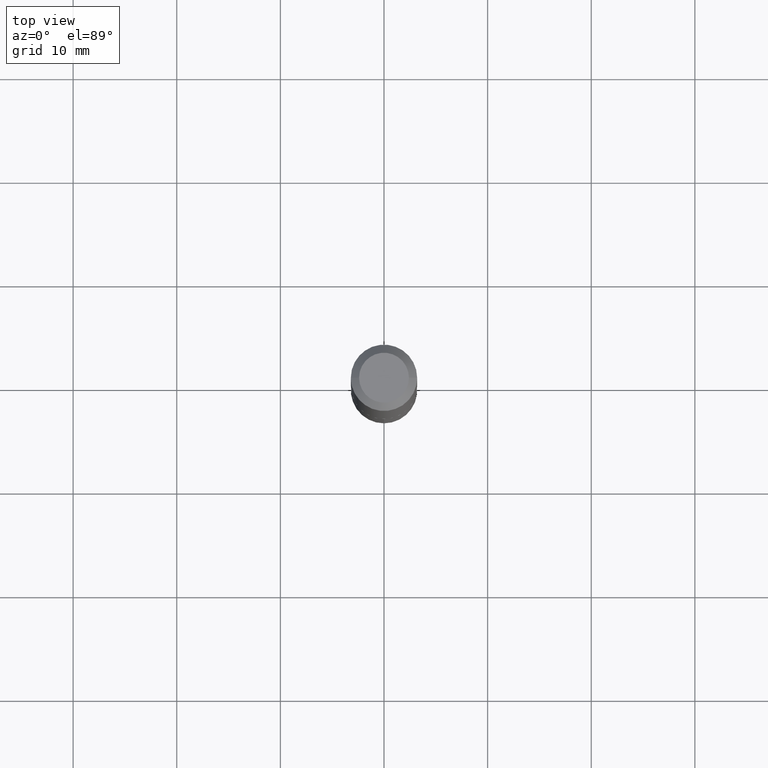
[diagram: clean part render]
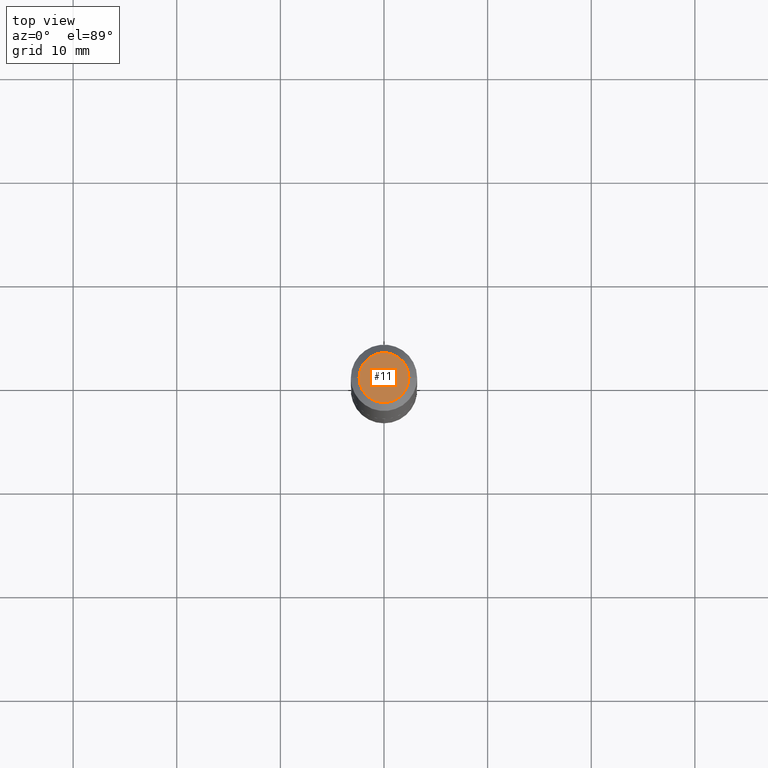
[diagram: same view with one face highlighted and labeled with its STEP entity id]
A machine part, top view. The second image highlights one B-rep face of the part: STEP entity #11.
In plain terms, the highlighted planar face has unit normal (0, -0, -1).
Its self-contained STEP definition (entity closure, byte-faithful):
#11 = ADVANCED_FACE ( 'NONE', ( #191 ), #286, .F. ) ;
#19 = VERTEX_POINT ( 'NONE', #195 ) ;
#42 = DIRECTION ( 'NONE',  ( -2.445468806185136597E-29, 3.491481338843145583E-15, 1.000000000000000000 ) ) ;
#69 = CARTESIAN_POINT ( 'NONE',  ( -5.989671091818699506E-48, 8.551662891794013634E-34, 2.449293598294725547E-19 ) ) ;
#82 = DIRECTION ( 'NONE',  ( -1.000000000000000000, 6.982962677686265922E-15, -4.876176775795935793E-29 ) ) ;
#102 = AXIS2_PLACEMENT_3D ( 'NONE', #69, #42, #103 ) ;
#103 = DIRECTION ( 'NONE',  ( 1.000000000000000000, -6.982962677686266711E-15, 4.876169288824004424E-29 ) ) ;
#110 = CARTESIAN_POINT ( 'NONE',  ( -2.994835545909349753E-48, 4.275831445897006817E-34, 1.224646799147362773E-19 ) ) ;
#129 = EDGE_CURVE ( 'NONE', #19, #378, #131, .T. ) ;
#131 = CIRCLE ( 'NONE', #265, 0.09474999999999998701 ) ;
#157 = CARTESIAN_POINT ( 'NONE',  ( 0.09474999999999998701, -8.117818624234574270E-16, 2.449293598346239839E-19 ) ) ;
#191 = FACE_OUTER_BOUND ( 'NONE', #389, .T. ) ;
#195 = CARTESIAN_POINT ( 'NONE',  ( -0.09474999999999998701, 7.161901096301971812E-16, 2.449293598246548890E-19 ) ) ;
#205 = CARTESIAN_POINT ( 'NONE',  ( -5.989671091818699506E-48, 8.551662891794013634E-34, 2.449293598294725547E-19 ) ) ;
#228 = DIRECTION ( 'NONE',  ( 2.438088387897960049E-29, -3.491481338843145188E-15, -1.000000000000000000 ) ) ;
#237 = DIRECTION ( 'NONE',  ( 1.000000000000000000, -6.982962677686266711E-15, 4.876169288824004424E-29 ) ) ;
#263 = ORIENTED_EDGE ( 'NONE', *, *, #129, .T. ) ;
#265 = AXIS2_PLACEMENT_3D ( 'NONE', #205, #366, #237 ) ;
#286 = PLANE ( 'NONE',  #350 ) ;
#323 = ORIENTED_EDGE ( 'NONE', *, *, #352, .T. ) ;
#331 = CIRCLE ( 'NONE', #102, 0.09474999999999998701 ) ;
#350 = AXIS2_PLACEMENT_3D ( 'NONE', #110, #228, #82 ) ;
#352 = EDGE_CURVE ( 'NONE', #378, #19, #331, .T. ) ;
#366 = DIRECTION ( 'NONE',  ( -2.445468806185136597E-29, 3.491481338843145583E-15, 1.000000000000000000 ) ) ;
#378 = VERTEX_POINT ( 'NONE', #157 ) ;
#389 = EDGE_LOOP ( 'NONE', ( #263, #323 ) ) ;